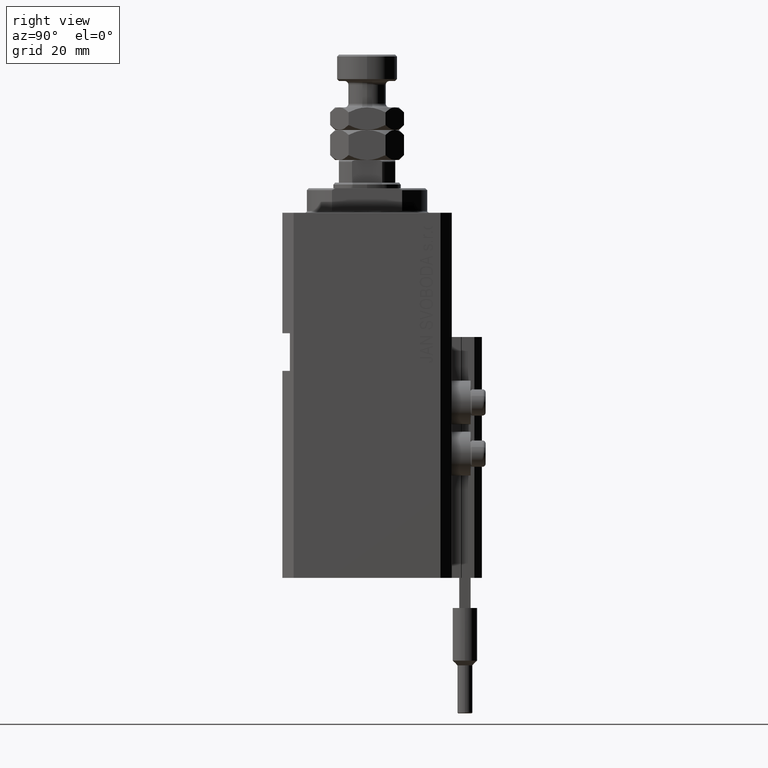
[diagram: clean part render]
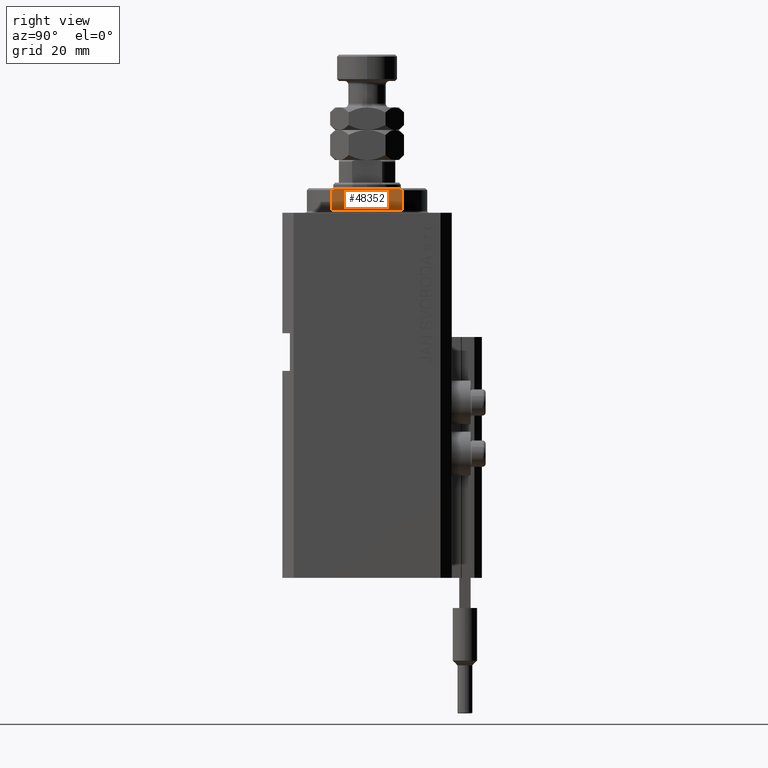
[diagram: same view with one face highlighted and labeled with its STEP entity id]
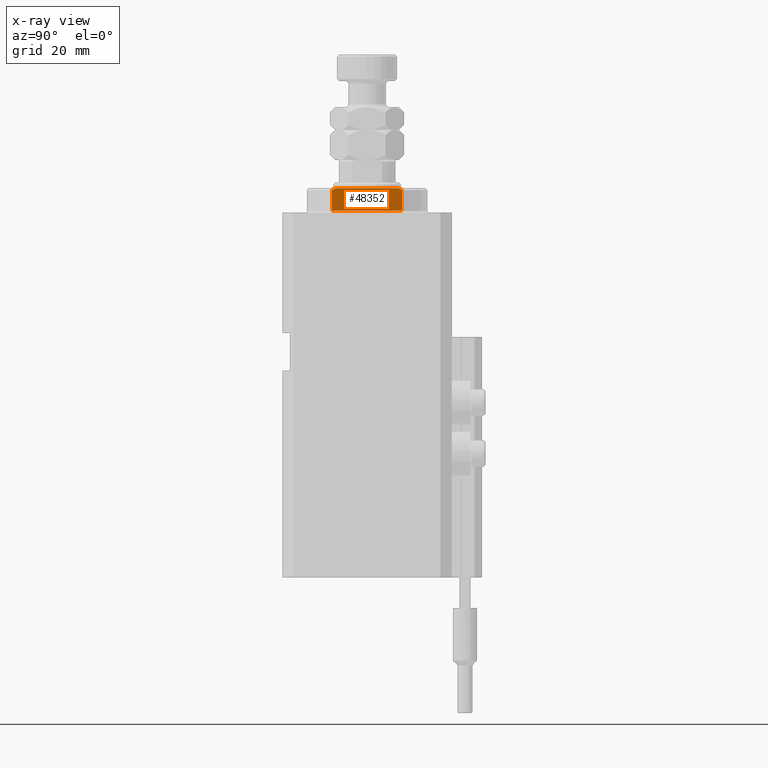
[diagram: x-ray of the same camera — body ghosted, the highlighted face saturated]
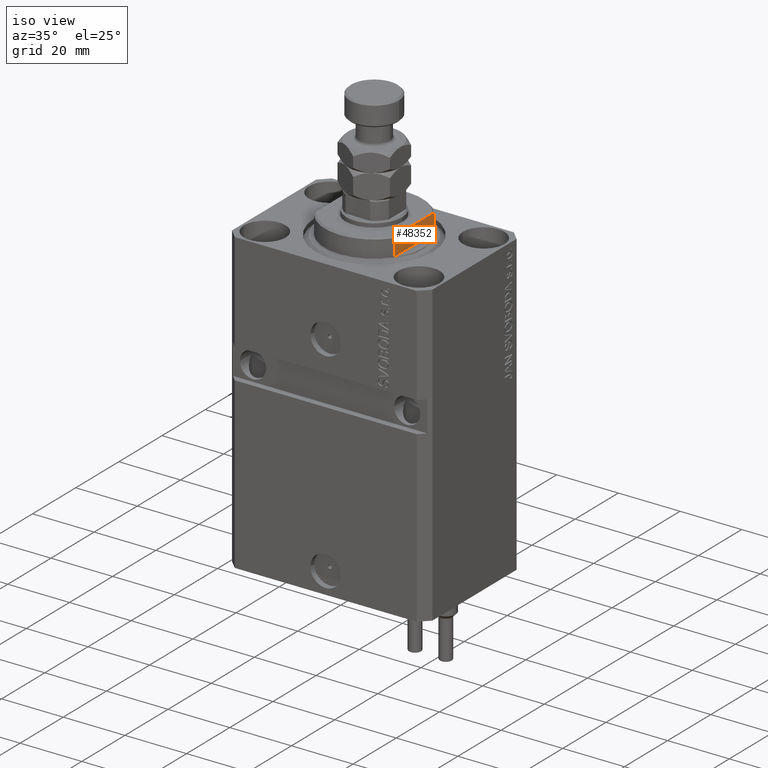
[diagram: same view with one face highlighted and labeled with its STEP entity id]
A machine part, right view. The second image highlights one B-rep face of the part: STEP entity #48352.
The next image is the same camera in x-ray: the body ghosted, the highlighted face saturated — about 0% of this face is hidden behind the body in this view.
A second angle (iso view) of the same face is appended — the face is thin or edge-on in the first view.
In plain terms, the highlighted planar face has unit normal (-1, 0, 0).
Its self-contained STEP definition (entity closure, byte-faithful):
#422 = EDGE_LOOP ( 'NONE', ( #14912, #42683, #44796, #17540, #10322, #48289 ) ) ;
#455 = EDGE_CURVE ( 'NONE', #25103, #20029, #23941, .T. ) ;
#845 = CARTESIAN_POINT ( 'NONE',  ( -13.00000000000000000, -8.440971508067139695, -6.500000000000000000 ) ) ;
#1147 = DIRECTION ( 'NONE',  ( -0.000000000000000000, -1.000000000000000000, -0.000000000000000000 ) ) ;
#2837 = VECTOR ( 'NONE', #42772, 1000.000000000000000 ) ;
#4078 = VERTEX_POINT ( 'NONE', #38989 ) ;
#4667 = CARTESIAN_POINT ( 'NONE',  ( -13.00000000000000000, -43.08131845707602992, -0.4999999999999995559 ) ) ;
#8051 = CARTESIAN_POINT ( 'NONE',  ( -13.00000000000000000, 9.327379053088815652, -0.4999999999999995559 ) ) ;
#8247 = CARTESIAN_POINT ( 'NONE',  ( -13.00000000000000000, -43.08131845707602992, -0.4999999999999995559 ) ) ;
#8626 = CARTESIAN_POINT ( 'NONE',  ( -13.00000000000000000, -9.034292940839598884, -6.170857829009066542 ) ) ;
#9132 = VERTEX_POINT ( 'NONE', #28505 ) ;
#10322 = ORIENTED_EDGE ( 'NONE', *, *, #38643, .F. ) ;
#10644 = CARTESIAN_POINT ( 'NONE',  ( -13.00000000000000000, -9.327379053088813876, -6.500000000000000000 ) ) ;
#11673 = LINE ( 'NONE', #42278, #2837 ) ;
#13298 = CARTESIAN_POINT ( 'NONE',  ( -13.00000000000000000, 8.440971508067139695, -6.500000000000000000 ) ) ;
#14912 = ORIENTED_EDGE ( 'NONE', *, *, #42448, .T. ) ;
#16630 = CARTESIAN_POINT ( 'NONE',  ( -13.00000000000000000, -8.738941625005658409, -6.337731789204286592 ) ) ;
#17509 = CARTESIAN_POINT ( 'NONE',  ( -13.00000000000000000, -9.327379053088815652, -6.000000000000023981 ) ) ;
#17540 = ORIENTED_EDGE ( 'NONE', *, *, #46835, .F. ) ;
#17794 = FACE_OUTER_BOUND ( 'NONE', #422, .T. ) ;
#17913 = DIRECTION ( 'NONE',  ( -0.000000000000000000, -1.000000000000000000, -0.000000000000000000 ) ) ;
#19160 = CARTESIAN_POINT ( 'NONE',  ( -13.00000000000000000, 9.327379053088916905, -6.000000000000014211 ) ) ;
#20029 = VERTEX_POINT ( 'NONE', #17509 ) ;
#20731 = VECTOR ( 'NONE', #21658, 1000.000000000000000 ) ;
#21552 = CARTESIAN_POINT ( 'NONE',  ( -13.00000000000000000, 8.738667591047022398, -6.337881022290549282 ) ) ;
#21658 = DIRECTION ( 'NONE',  ( 0.000000000000000000, 0.000000000000000000, -1.000000000000000000 ) ) ;
#23709 = LINE ( 'NONE', #4667, #34176 ) ;
#23711 = EDGE_CURVE ( 'NONE', #39814, #25107, #11673, .T. ) ;
#23941 = B_SPLINE_CURVE_WITH_KNOTS ( 'NONE', 3,
 ( #845, #16630, #8626, #38732 ),
 .UNSPECIFIED., .F., .F.,
 ( 4, 4 ),
 ( 0.04915043732154475431, 0.05017913261572017058 ),
 .UNSPECIFIED. ) ;
#25103 = VERTEX_POINT ( 'NONE', #42411 ) ;
#25107 = VERTEX_POINT ( 'NONE', #8051 ) ;
#25320 = CARTESIAN_POINT ( 'NONE',  ( -13.00000000000000000, 9.034035639617135516, -6.171007825636148247 ) ) ;
#25599 = EDGE_CURVE ( 'NONE', #4078, #25103, #30192, .T. ) ;
#28505 = CARTESIAN_POINT ( 'NONE',  ( -13.00000000000000000, -9.327379053088815652, -0.4999999999999995559 ) ) ;
#29580 = CARTESIAN_POINT ( 'NONE',  ( -13.00000000000000000, 9.327379053088916905, -6.000000000000014211 ) ) ;
#30192 = LINE ( 'NONE', #33462, #34094 ) ;
#31960 = B_SPLINE_CURVE_WITH_KNOTS ( 'NONE', 3,
 ( #29580, #25320, #21552, #13298 ),
 .UNSPECIFIED., .F., .F.,
 ( 4, 4 ),
 ( 0.03031084603841392722, 0.03132841702658674399 ),
 .UNSPECIFIED. ) ;
#33094 = PLANE ( 'NONE',  #47264 ) ;
#33462 = CARTESIAN_POINT ( 'NONE',  ( -13.00000000000000000, -43.08131845707602992, -6.500000000000000000 ) ) ;
#34094 = VECTOR ( 'NONE', #17913, 1000.000000000000000 ) ;
#34176 = VECTOR ( 'NONE', #1147, 1000.000000000000000 ) ;
#34319 = DIRECTION ( 'NONE',  ( 1.000000000000000000, 0.000000000000000000, 0.000000000000000000 ) ) ;
#34812 = DIRECTION ( 'NONE',  ( 0.000000000000000000, 0.000000000000000000, -1.000000000000000000 ) ) ;
#38643 = EDGE_CURVE ( 'NONE', #25107, #9132, #23709, .T. ) ;
#38732 = CARTESIAN_POINT ( 'NONE',  ( -13.00000000000000000, -9.327379053088815652, -6.000000000000023981 ) ) ;
#38989 = CARTESIAN_POINT ( 'NONE',  ( -13.00000000000000000, 8.440971508067139695, -6.500000000000000000 ) ) ;
#39814 = VERTEX_POINT ( 'NONE', #19160 ) ;
#42278 = CARTESIAN_POINT ( 'NONE',  ( -13.00000000000000000, 9.327379053088813876, -6.500000000000000000 ) ) ;
#42411 = CARTESIAN_POINT ( 'NONE',  ( -13.00000000000000000, -8.440971508067139695, -6.500000000000000000 ) ) ;
#42448 = EDGE_CURVE ( 'NONE', #39814, #4078, #31960, .T. ) ;
#42683 = ORIENTED_EDGE ( 'NONE', *, *, #25599, .T. ) ;
#42772 = DIRECTION ( 'NONE',  ( -0.000000000000000000, -0.000000000000000000, 1.000000000000000000 ) ) ;
#44796 = ORIENTED_EDGE ( 'NONE', *, *, #455, .T. ) ;
#45016 = LINE ( 'NONE', #10644, #20731 ) ;
#46835 = EDGE_CURVE ( 'NONE', #9132, #20029, #45016, .T. ) ;
#47264 = AXIS2_PLACEMENT_3D ( 'NONE', #8247, #34319, #34812 ) ;
#48289 = ORIENTED_EDGE ( 'NONE', *, *, #23711, .F. ) ;
#48352 = ADVANCED_FACE ( 'NONE', ( #17794 ), #33094, .F. ) ;